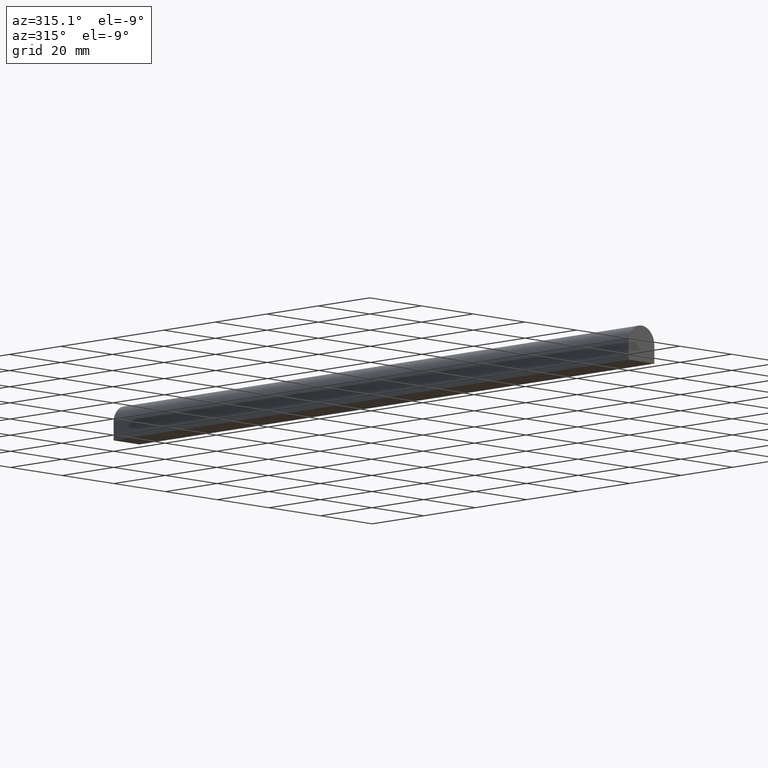
[diagram: clean part render]
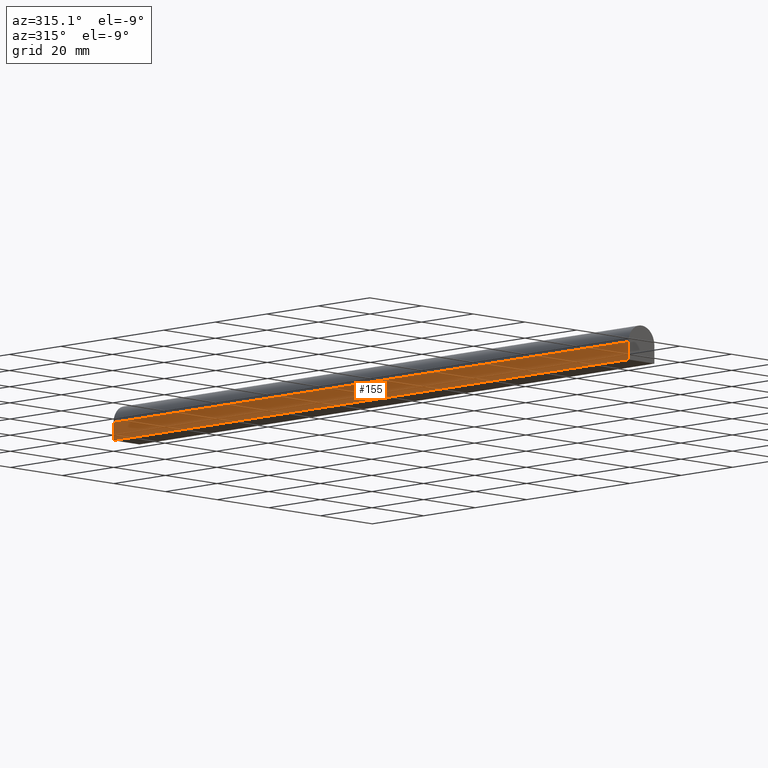
[diagram: same view with one face highlighted and labeled with its STEP entity id]
A machine part, auxiliary view. The second image highlights one B-rep face of the part: STEP entity #155.
In plain terms, the highlighted face is a freeform B-spline surface patch.
Its self-contained STEP definition (entity closure, byte-faithful):
#49=CARTESIAN_POINT('',(0.0,0.0,0.0));
#50=VERTEX_POINT('',#49);
#65=CARTESIAN_POINT('',(0.0,0.0,5.0));
#66=VERTEX_POINT('',#65);
#82=CARTESIAN_POINT('',(0.0,0.0,5.0));
#83=CARTESIAN_POINT('',(0.0,0.0,0.0));
#84=QUASI_UNIFORM_CURVE('',1,(#82,#83),.UNSPECIFIED.,.F.,.U.);
#85=EDGE_CURVE('',#66,#50,#84,.T.);
#95=CARTESIAN_POINT('',(0.0,200.0,0.0));
#96=VERTEX_POINT('',#95);
#104=CARTESIAN_POINT('',(0.0,200.0,5.0));
#105=VERTEX_POINT('',#104);
#106=CARTESIAN_POINT('',(0.0,200.0,5.0));
#107=CARTESIAN_POINT('',(0.0,200.0,0.0));
#108=QUASI_UNIFORM_CURVE('',1,(#106,#107),.UNSPECIFIED.,.F.,.U.);
#109=EDGE_CURVE('',#105,#96,#108,.T.);
#136=CARTESIAN_POINT('',(0.0,-9.989999612361171,-0.249749990309030));
#137=CARTESIAN_POINT('',(0.0,-9.989999612361171,5.249750124419480));
#138=CARTESIAN_POINT('',(0.0,209.990004976779200,-0.249749990309030));
#139=CARTESIAN_POINT('',(0.0,209.990004976779200,5.249750124419480));
#140=B_SPLINE_SURFACE_WITH_KNOTS('',1,1,((#136,#138),(#137,#139)),.UNSPECIFIED.,.F.,.F.,.U.,(2,2),(2,2),(0.0,5.499500114728509),(0.0,219.980004589140410),.UNSPECIFIED.);
#141=ORIENTED_EDGE('',*,*,#85,.F.);
#142=CARTESIAN_POINT('',(0.0,200.0,5.0));
#143=CARTESIAN_POINT('',(0.0,0.0,5.0));
#144=QUASI_UNIFORM_CURVE('',1,(#142,#143),.UNSPECIFIED.,.F.,.U.);
#145=EDGE_CURVE('',#105,#66,#144,.T.);
#146=ORIENTED_EDGE('',*,*,#145,.F.);
#147=ORIENTED_EDGE('',*,*,#109,.T.);
#148=CARTESIAN_POINT('',(0.0,200.0,0.0));
#149=CARTESIAN_POINT('',(0.0,0.0,0.0));
#150=QUASI_UNIFORM_CURVE('',1,(#148,#149),.UNSPECIFIED.,.F.,.U.);
#151=EDGE_CURVE('',#96,#50,#150,.T.);
#152=ORIENTED_EDGE('',*,*,#151,.T.);
#153=EDGE_LOOP('',(#141,#146,#147,#152));
#154=FACE_OUTER_BOUND('',#153,.T.);
#155=ADVANCED_FACE('',(#154),#140,.T.);